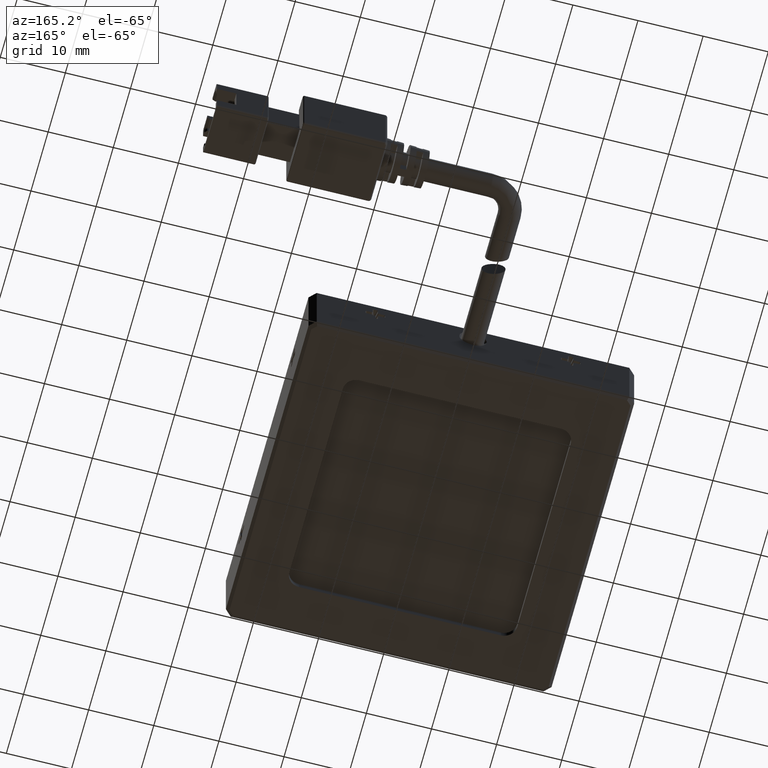
[diagram: clean part render]
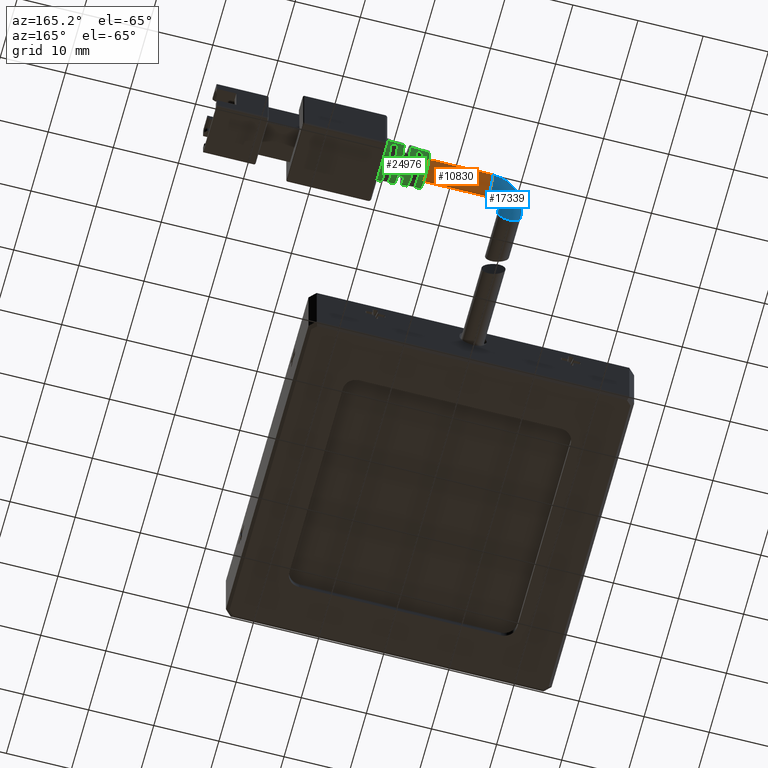
[diagram: same view with three faces highlighted in distinct colors, each labeled with its STEP entity id]
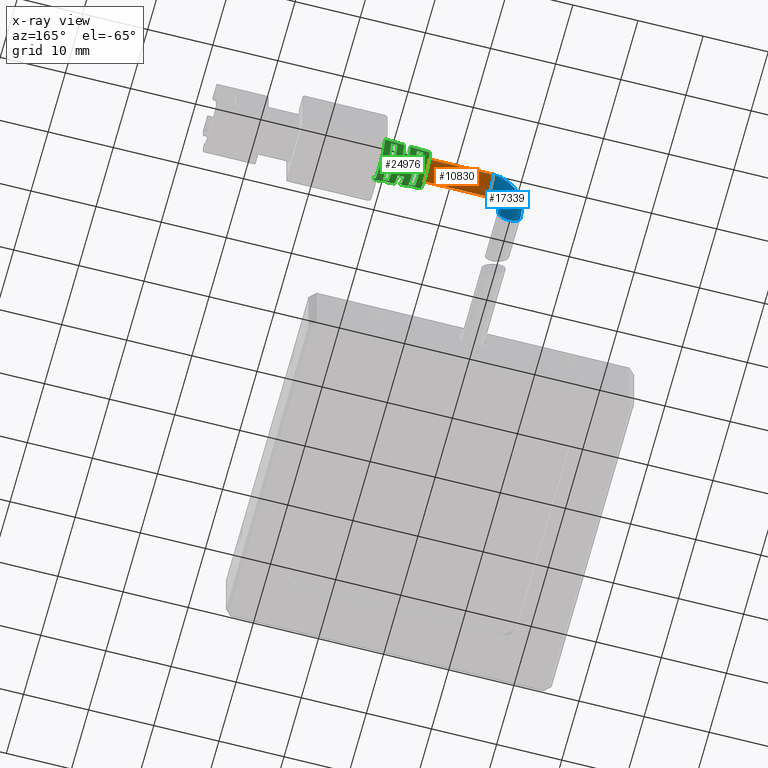
[diagram: x-ray of the same camera — body ghosted, the three highlighted faces saturated]
A machine part, auxiliary view with three faces highlighted in distinct colors.
The next image is the same camera in x-ray (body ghosted, the three faces saturated) — at least one of them is partly hidden behind the body in this view.
Their STEP definitions:

[orange] entity #10830 — the highlighted cylindrical surface (edge-blend (fillet) strip) has radius 1.75 mm, axis along (1, 0, 0).
#181 = CIRCLE ( 'NONE', #37378, 1.750000000000001600 ) ;
#325 = CARTESIAN_POINT ( 'NONE',  ( 33.26702531645572200, 65.96113924050634100, -1.250000000000000900 ) ) ;
#427 = DIRECTION ( 'NONE',  ( 1.000000000000000000, 0.0000000000000000000, 0.0000000000000000000 ) ) ;
#889 = VERTEX_POINT ( 'NONE', #25025 ) ;
#2106 = AXIS2_PLACEMENT_3D ( 'NONE', #24714, #5219, #27958 ) ;
#4204 = ORIENTED_EDGE ( 'NONE', *, *, #32628, .T. ) ;
#4391 = ORIENTED_EDGE ( 'NONE', *, *, #23008, .F. ) ;
#5080 = EDGE_CURVE ( 'NONE', #40951, #31940, #181, .T. ) ;
#5219 = DIRECTION ( 'NONE',  ( 1.000000000000000000, 0.0000000000000000000, 0.0000000000000000000 ) ) ;
#8376 = DIRECTION ( 'NONE',  ( 1.000000000000000000, 0.0000000000000000000, 0.0000000000000000000 ) ) ;
#9549 = FACE_OUTER_BOUND ( 'NONE', #10687, .T. ) ;
#10687 = EDGE_LOOP ( 'NONE', ( #4391, #21981, #4204, #40299 ) ) ;
#10830 = ADVANCED_FACE ( 'NONE', ( #9549 ), #39952, .T. ) ;
#12369 = CARTESIAN_POINT ( 'NONE',  ( 26.26702531645571900, 64.21113924050634100, -1.250000000000000700 ) ) ;
#15841 = CARTESIAN_POINT ( 'NONE',  ( 33.26702531645572200, 64.21113924050634100, -1.250000000000000700 ) ) ;
#17035 = LINE ( 'NONE', #21290, #22623 ) ;
#19120 = DIRECTION ( 'NONE',  ( 0.0000000000000000000, 1.000000000000000000, -1.239088197126289600E-016 ) ) ;
#21290 = CARTESIAN_POINT ( 'NONE',  ( 26.26702531645571900, 62.46113924050633400, -1.250000000000000200 ) ) ;
#21499 = EDGE_CURVE ( 'NONE', #889, #24837, #41717, .T. ) ;
#21981 = ORIENTED_EDGE ( 'NONE', *, *, #21499, .T. ) ;
#22623 = VECTOR ( 'NONE', #8376, 1000.000000000000000 ) ;
#23008 = EDGE_CURVE ( 'NONE', #889, #40951, #17035, .T. ) ;
#24714 = CARTESIAN_POINT ( 'NONE',  ( 23.26702531645571900, 64.21113924050634100, -1.250000000000000700 ) ) ;
#24837 = VERTEX_POINT ( 'NONE', #39963 ) ;
#25025 = CARTESIAN_POINT ( 'NONE',  ( 23.26702531645571900, 62.46113924050633400, -1.250000000000000900 ) ) ;
#25672 = AXIS2_PLACEMENT_3D ( 'NONE', #12369, #41629, #38452 ) ;
#26355 = CARTESIAN_POINT ( 'NONE',  ( 26.26702531645571900, 65.96113924050634100, -1.250000000000000900 ) ) ;
#27202 = CARTESIAN_POINT ( 'NONE',  ( 33.26702531645572200, 62.46113924050633400, -1.250000000000000200 ) ) ;
#27958 = DIRECTION ( 'NONE',  ( 0.0000000000000000000, 1.000000000000000000, -1.239088197126289600E-016 ) ) ;
#31940 = VERTEX_POINT ( 'NONE', #325 ) ;
#32628 = EDGE_CURVE ( 'NONE', #24837, #31940, #40547, .T. ) ;
#37378 = AXIS2_PLACEMENT_3D ( 'NONE', #15841, #38504, #19120 ) ;
#38452 = DIRECTION ( 'NONE',  ( 0.0000000000000000000, 1.000000000000000000, -1.239088197126289600E-016 ) ) ;
#38504 = DIRECTION ( 'NONE',  ( 1.000000000000000000, 0.0000000000000000000, 0.0000000000000000000 ) ) ;
#39495 = VECTOR ( 'NONE', #427, 1000.000000000000000 ) ;
#39952 = CYLINDRICAL_SURFACE ( 'NONE', #25672, 1.750000000000001600 ) ;
#39963 = CARTESIAN_POINT ( 'NONE',  ( 23.26702531645571900, 65.96113924050634100, -1.250000000000000700 ) ) ;
#40299 = ORIENTED_EDGE ( 'NONE', *, *, #5080, .F. ) ;
#40547 = LINE ( 'NONE', #26355, #39495 ) ;
#40951 = VERTEX_POINT ( 'NONE', #27202 ) ;
#41629 = DIRECTION ( 'NONE',  ( 1.000000000000000000, 0.0000000000000000000, 0.0000000000000000000 ) ) ;
#41717 = CIRCLE ( 'NONE', #2106, 1.750000000000001600 ) ;

[blue] entity #17339 — the highlighted face is a freeform B-spline surface patch.
#889 = VERTEX_POINT ( 'NONE', #25025 ) ;
#1731 = CARTESIAN_POINT ( 'NONE',  ( 23.26702531645571900, 65.96113924050632700, -4.750000000000000000 ) ) ;
#1814 = VERTEX_POINT ( 'NONE', #8256 ) ;
#2106 = AXIS2_PLACEMENT_3D ( 'NONE', #24714, #5219, #27958 ) ;
#3423 = DIRECTION ( 'NONE',  ( 0.0000000000000000000, -2.465190328815661900E-032, 1.000000000000000000 ) ) ;
#4868 = CARTESIAN_POINT ( 'NONE',  ( 23.26702531645571900, 65.96113924050634100, -1.250000000000000700 ) ) ;
#5002 = CARTESIAN_POINT ( 'NONE',  ( 17.51702531645571500, 63.57941125686103600, -4.750000000000000000 ) ) ;
#5141 = EDGE_CURVE ( 'NONE', #24837, #16649, #39794, .T. ) ;
#5219 = DIRECTION ( 'NONE',  ( 1.000000000000000000, 0.0000000000000000000, 0.0000000000000000000 ) ) ;
#5724 = DIRECTION ( 'NONE',  ( 1.836970198721029700E-016, 1.000000000000000000, 2.465190328815661900E-032 ) ) ;
#5955 = AXIS2_PLACEMENT_3D ( 'NONE', #25257, #5724, #28473 ) ;
#6761 = AXIS2_PLACEMENT_3D ( 'NONE', #12507, #35209, #15777 ) ;
#6949 = CIRCLE ( 'NONE', #5955, 1.749999999999998000 ) ;
#8256 = CARTESIAN_POINT ( 'NONE',  ( 21.01702531645572200, 60.21113924050633400, -1.250000000000000900 ) ) ;
#8304 = CARTESIAN_POINT ( 'NONE',  ( 23.26702531645571900, 62.46113924050633400, -4.750000000000000000 ) ) ;
#10210 = CARTESIAN_POINT ( 'NONE',  ( 19.26702531645571900, 60.21113924050633400, -3.000000000000000900 ) ) ;
#11396 = ORIENTED_EDGE ( 'NONE', *, *, #21499, .F. ) ;
#11559 = CARTESIAN_POINT ( 'NONE',  ( 21.01702531645571900, 61.52915872516687300, -4.750000000000000000 ) ) ;
#12507 = CARTESIAN_POINT ( 'NONE',  ( 19.26702531645571900, 60.21113924050633400, -1.250000000000000700 ) ) ;
#14824 = CARTESIAN_POINT ( 'NONE',  ( 23.26702531645571900, 62.46113924050633400, -1.250000000000000900 ) ) ;
#15113 = CIRCLE ( 'NONE', #16263, 2.249999999999995100 ) ;
#15228 = DIRECTION ( 'NONE',  ( 0.0000000000000000000, -2.465190328815661900E-032, 1.000000000000000000 ) ) ;
#15777 = DIRECTION ( 'NONE',  ( -1.000000000000000000, 0.0000000000000000000, 0.0000000000000000000 ) ) ;
#16263 = AXIS2_PLACEMENT_3D ( 'NONE', #34668, #15228, #37914 ) ;
#16649 = VERTEX_POINT ( 'NONE', #39687 ) ;
#17339 = ADVANCED_FACE ( 'NONE', ( #18745 ), #25784, .T. ) ;
#17969 = CARTESIAN_POINT ( 'NONE',  ( 19.89875330010101400, 65.96113924050634100, -1.250000000000000400 ) ) ;
#18112 = CARTESIAN_POINT ( 'NONE',  ( 21.01702531645571500, 61.52915872516687300, -1.250000000000000900 ) ) ;
#18745 = FACE_OUTER_BOUND ( 'NONE', #30409, .T. ) ;
#21220 = CARTESIAN_POINT ( 'NONE',  ( 17.51702531645571500, 60.21113924050633400, -1.250000000000000700 ) ) ;
#21499 = EDGE_CURVE ( 'NONE', #889, #24837, #41717, .T. ) ;
#22918 = CARTESIAN_POINT ( 'NONE',  ( 23.26702531645571900, 60.21113924050633400, -1.250000000000000700 ) ) ;
#24502 = CARTESIAN_POINT ( 'NONE',  ( 19.89875330010101400, 65.96113924050632700, -4.750000000000000000 ) ) ;
#24714 = CARTESIAN_POINT ( 'NONE',  ( 23.26702531645571900, 64.21113924050634100, -1.250000000000000700 ) ) ;
#24837 = VERTEX_POINT ( 'NONE', #39963 ) ;
#25025 = CARTESIAN_POINT ( 'NONE',  ( 23.26702531645571900, 62.46113924050633400, -1.250000000000000900 ) ) ;
#25257 = CARTESIAN_POINT ( 'NONE',  ( 19.26702531645571900, 60.21113924050633400, -1.250000000000000700 ) ) ;
#25784 =( BOUNDED_SURFACE ( )  B_SPLINE_SURFACE ( 3, 3, ( 
 ( #4868, #17969, #40645, #21220 ),
 ( #1731, #24502, #5002, #27746 ),
 ( #8304, #30985, #11559, #34286 ),
 ( #14824, #37517, #18112, #40791 ) ),
 .UNSPECIFIED., .F., .F., .F. ) 
 B_SPLINE_SURFACE_WITH_KNOTS ( ( 4, 4 ),
 ( 4, 4 ),
 ( 0.0000000000000000000, 1.000000000000000000 ),
 ( 0.0000000000000000000, 1.000000000000000000 ),
 .UNSPECIFIED. ) 
 GEOMETRIC_REPRESENTATION_ITEM ( )  RATIONAL_B_SPLINE_SURFACE ( (
 ( 1.000000000000000000, 0.8047378541243649400, 0.8047378541243649400, 1.000000000000000000),
 ( 0.3333333333333333700, 0.2682459513747883500, 0.2682459513747883500, 0.3333333333333333700),
 ( 0.3333333333333333700, 0.2682459513747883500, 0.2682459513747883500, 0.3333333333333333700),
 ( 1.000000000000000000, 0.8047378541243649400, 0.8047378541243649400, 1.000000000000000000) ) ) 
 REPRESENTATION_ITEM ( '' )  SURFACE ( )  );
#26219 = DIRECTION ( 'NONE',  ( 0.0000000000000000000, -1.000000000000000000, 0.0000000000000000000 ) ) ;
#27193 = ORIENTED_EDGE ( 'NONE', *, *, #32967, .T. ) ;
#27746 = CARTESIAN_POINT ( 'NONE',  ( 17.51702531645571500, 60.21113924050633400, -4.750000000000000000 ) ) ;
#27958 = DIRECTION ( 'NONE',  ( 0.0000000000000000000, 1.000000000000000000, -1.239088197126289600E-016 ) ) ;
#28281 = VERTEX_POINT ( 'NONE', #10210 ) ;
#28473 = DIRECTION ( 'NONE',  ( -1.000000000000000000, 0.0000000000000000000, 0.0000000000000000000 ) ) ;
#29077 = ORIENTED_EDGE ( 'NONE', *, *, #5141, .F. ) ;
#29657 = EDGE_CURVE ( 'NONE', #1814, #28281, #34745, .T. ) ;
#30409 = EDGE_LOOP ( 'NONE', ( #11396, #27193, #34116, #30810, #29077 ) ) ;
#30810 = ORIENTED_EDGE ( 'NONE', *, *, #39072, .T. ) ;
#30985 = CARTESIAN_POINT ( 'NONE',  ( 21.94900583179518000, 62.46113924050633400, -4.750000000000000000 ) ) ;
#32212 = AXIS2_PLACEMENT_3D ( 'NONE', #22918, #3423, #26219 ) ;
#32967 = EDGE_CURVE ( 'NONE', #889, #1814, #15113, .T. ) ;
#34116 = ORIENTED_EDGE ( 'NONE', *, *, #29657, .T. ) ;
#34286 = CARTESIAN_POINT ( 'NONE',  ( 21.01702531645571500, 60.21113924050633400, -4.750000000000000000 ) ) ;
#34668 = CARTESIAN_POINT ( 'NONE',  ( 23.26702531645571900, 60.21113924050633400, -1.250000000000000900 ) ) ;
#34745 = CIRCLE ( 'NONE', #6761, 1.749999999999998000 ) ;
#35209 = DIRECTION ( 'NONE',  ( 1.836970198721029700E-016, 1.000000000000000000, 2.465190328815661900E-032 ) ) ;
#37517 = CARTESIAN_POINT ( 'NONE',  ( 21.94900583179518300, 62.46113924050633400, -1.250000000000000900 ) ) ;
#37914 = DIRECTION ( 'NONE',  ( 0.0000000000000000000, -1.000000000000000000, 0.0000000000000000000 ) ) ;
#39072 = EDGE_CURVE ( 'NONE', #28281, #16649, #6949, .T. ) ;
#39687 = CARTESIAN_POINT ( 'NONE',  ( 17.51702531645572200, 60.21113924050633400, -1.250000000000000700 ) ) ;
#39794 = CIRCLE ( 'NONE', #32212, 5.749999999999998200 ) ;
#39963 = CARTESIAN_POINT ( 'NONE',  ( 23.26702531645571900, 65.96113924050634100, -1.250000000000000700 ) ) ;
#40645 = CARTESIAN_POINT ( 'NONE',  ( 17.51702531645571500, 63.57941125686104300, -1.250000000000000400 ) ) ;
#40791 = CARTESIAN_POINT ( 'NONE',  ( 21.01702531645571900, 60.21113924050633400, -1.250000000000000900 ) ) ;
#41717 = CIRCLE ( 'NONE', #2106, 1.750000000000001600 ) ;

[green] entity #24976 — the highlighted conical surface has half-angle 3 deg.
#454 = CARTESIAN_POINT ( 'NONE',  ( 40.26702531645572200, 67.46113924050536100, -1.250000000000000900 ) ) ;
#505 = EDGE_CURVE ( 'NONE', #19131, #8930, #40720, .T. ) ;
#1326 = CARTESIAN_POINT ( 'NONE',  ( 35.26702531645798900, 67.13823875308443700, -1.850000000000001000 ) ) ;
#1714 = CONICAL_SURFACE ( 'NONE', #4795, 3.249999999987096500, 0.05235987755968116900 ) ;
#2111 = EDGE_LOOP ( 'NONE', ( #17372, #13996, #12355, #10895, #38294, #9919, #17284, #22280, #18622, #18367, #14689, #23633 ) ) ;
#2227 = AXIS2_PLACEMENT_3D ( 'NONE', #28655, #9248, #31915 ) ;
#2290 = CARTESIAN_POINT ( 'NONE',  ( 38.60035835680046300, 67.31635901727143800, -1.850000000000001000 ) ) ;
#2390 = CARTESIAN_POINT ( 'NONE',  ( 36.93369166311234900, 64.81113924050633600, -4.266210776928613100 ) ) ;
#3054 = VERTEX_POINT ( 'NONE', #11598 ) ;
#3434 = VERTEX_POINT ( 'NONE', #39767 ) ;
#3756 = ORIENTED_EDGE ( 'NONE', *, *, #39703, .T. ) ;
#3761 = DIRECTION ( 'NONE',  ( -1.000000000000000000, -0.0000000000000000000, -0.0000000000000000000 ) ) ;
#4076 = EDGE_CURVE ( 'NONE', #20303, #40109, #23231, .T. ) ;
#4112 = ORIENTED_EDGE ( 'NONE', *, *, #17422, .T. ) ;
#4780 = CARTESIAN_POINT ( 'NONE',  ( 35.26702531645936700, 61.28403972792816700, -1.850000000000000500 ) ) ;
#4795 = AXIS2_PLACEMENT_3D ( 'NONE', #40828, #18145, #34457 ) ;
#4821 = CIRCLE ( 'NONE', #40738, 3.040368882866448400 ) ;
#5244 = CARTESIAN_POINT ( 'NONE',  ( 36.26702531643662300, 64.21113924050634100, -1.250000000000000700 ) ) ;
#5343 = CIRCLE ( 'NONE', #10103, 3.092776662151075500 ) ;
#5677 = EDGE_CURVE ( 'NONE', #38143, #21783, #14556, .T. ) ;
#5774 = CIRCLE ( 'NONE', #2227, 2.883145545018506200 ) ;
#6171 = LINE ( 'NONE', #23978, #22484 ) ;
#6249 = CARTESIAN_POINT ( 'NONE',  ( 39.26702531647936900, 64.21113924050634100, -1.250000000000000700 ) ) ;
#6792 = B_SPLINE_CURVE_WITH_KNOTS ( 'NONE', 3,
 ( #20998, #40270, #24269, #4780 ),
 .UNSPECIFIED., .F., .F.,
 ( 4, 4 ),
 ( 2.821323884305459600E-015, 0.001001431039903070100 ),
 .UNSPECIFIED. ) ;
#6838 = VECTOR ( 'NONE', #19892, 1000.000000000000200 ) ;
#7065 = EDGE_CURVE ( 'NONE', #40187, #20303, #27633, .T. ) ;
#7798 = CIRCLE ( 'NONE', #23634, 3.145184441432733000 ) ;
#7897 = CARTESIAN_POINT ( 'NONE',  ( 34.93369162600836100, 67.12040624538471400, -1.850000000000001000 ) ) ;
#8494 = EDGE_CURVE ( 'NONE', #13586, #3054, #4821, .T. ) ;
#8536 = DIRECTION ( 'NONE',  ( 0.0000000000000000000, 1.000000000000000000, -9.984861047838719200E-016 ) ) ;
#8904 = VERTEX_POINT ( 'NONE', #12593 ) ;
#8930 = VERTEX_POINT ( 'NONE', #28904 ) ;
#9173 = EDGE_CURVE ( 'NONE', #10125, #40187, #7798, .T. ) ;
#9248 = DIRECTION ( 'NONE',  ( 1.000000000000000000, 0.0000000000000000000, 0.0000000000000000000 ) ) ;
#9579 = DIRECTION ( 'NONE',  ( 0.0000000000000000000, 1.000000000000000000, -6.781366088276698700E-017 ) ) ;
#9726 = VERTEX_POINT ( 'NONE', #37415 ) ;
#9919 = ORIENTED_EDGE ( 'NONE', *, *, #22819, .T. ) ;
#10103 = AXIS2_PLACEMENT_3D ( 'NONE', #35745, #16344, #39007 ) ;
#10125 = VERTEX_POINT ( 'NONE', #39776 ) ;
#10247 = CARTESIAN_POINT ( 'NONE',  ( 40.26702531622834900, 67.46113924049343800, -1.250000000000000900 ) ) ;
#10390 = VERTEX_POINT ( 'NONE', #37936 ) ;
#10895 = ORIENTED_EDGE ( 'NONE', *, *, #8494, .T. ) ;
#11180 = CARTESIAN_POINT ( 'NONE',  ( 34.26702531647827500, 67.08472120729021500, -1.850000000000001200 ) ) ;
#11289 = AXIS2_PLACEMENT_3D ( 'NONE', #32954, #13513, #36186 ) ;
#11598 = CARTESIAN_POINT ( 'NONE',  ( 36.26702531644617300, 64.81113924050633600, -4.230577619171423700 ) ) ;
#12004 = CARTESIAN_POINT ( 'NONE',  ( 36.60035832392478000, 63.61113924050633300, -4.248397300001395900 ) ) ;
#12355 = ORIENTED_EDGE ( 'NONE', *, *, #21201, .T. ) ;
#12406 = CIRCLE ( 'NONE', #39705, 3.040368882866448400 ) ;
#12537 = DIRECTION ( 'NONE',  ( 1.000000000000000000, 0.0000000000000000000, 0.0000000000000000000 ) ) ;
#12593 = CARTESIAN_POINT ( 'NONE',  ( 37.26702531646982000, 67.30391590265740800, -1.250000000000000900 ) ) ;
#13020 = CARTESIAN_POINT ( 'NONE',  ( 34.26702531648391700, 64.21113924050634100, -1.250000000000000700 ) ) ;
#13513 = DIRECTION ( 'NONE',  ( -1.000000000000000000, -0.0000000000000000000, -0.0000000000000000000 ) ) ;
#13586 = VERTEX_POINT ( 'NONE', #35067 ) ;
#13968 = DIRECTION ( 'NONE',  ( -1.000000000000000000, -0.0000000000000000000, -0.0000000000000000000 ) ) ;
#13996 = ORIENTED_EDGE ( 'NONE', *, *, #14684, .T. ) ;
#14418 = EDGE_CURVE ( 'NONE', #23127, #8930, #33812, .T. ) ;
#14447 = FACE_BOUND ( 'NONE', #40063, .T. ) ;
#14556 = B_SPLINE_CURVE_WITH_KNOTS ( 'NONE', 3,
 ( #41242, #28170, #12004, #21806 ),
 .UNSPECIFIED., .F., .F.,
 ( 4, 4 ),
 ( 1.403640006643218800E-015, 0.001001426938980516500 ),
 .UNSPECIFIED. ) ;
#14614 = EDGE_CURVE ( 'NONE', #3054, #14752, #20094, .T. ) ;
#14684 = EDGE_CURVE ( 'NONE', #23570, #29925, #5774, .T. ) ;
#14689 = ORIENTED_EDGE ( 'NONE', *, *, #5677, .T. ) ;
#14752 = VERTEX_POINT ( 'NONE', #29211 ) ;
#14815 = CARTESIAN_POINT ( 'NONE',  ( 38.93369169520680400, 61.08812897988507700, -1.850000000000000500 ) ) ;
#15175 = CARTESIAN_POINT ( 'NONE',  ( 40.26702531622834900, 60.96113924051923800, -1.250000000000000000 ) ) ;
#15259 = CARTESIAN_POINT ( 'NONE',  ( 39.26702531646754600, 67.35193468274516700, -1.850000000000001200 ) ) ;
#15476 = FACE_BOUND ( 'NONE', #31888, .T. ) ;
#16293 = DIRECTION ( 'NONE',  ( 0.0000000000000000000, 1.000000000000000000, -9.602706328393786200E-016 ) ) ;
#16344 = DIRECTION ( 'NONE',  ( 1.000000000000000000, 0.0000000000000000000, 0.0000000000000000000 ) ) ;
#16764 = ORIENTED_EDGE ( 'NONE', *, *, #9173, .T. ) ;
#17284 = ORIENTED_EDGE ( 'NONE', *, *, #18756, .T. ) ;
#17372 = ORIENTED_EDGE ( 'NONE', *, *, #35108, .F. ) ;
#17422 = EDGE_CURVE ( 'NONE', #40109, #10125, #41194, .T. ) ;
#17891 = VECTOR ( 'NONE', #29660, 1000.000000000000200 ) ;
#17897 = ORIENTED_EDGE ( 'NONE', *, *, #24916, .T. ) ;
#18104 = CARTESIAN_POINT ( 'NONE',  ( 39.26702531647463000, 61.07034379826713200, -1.850000000000000500 ) ) ;
#18145 = DIRECTION ( 'NONE',  ( 1.000000000000000000, 0.0000000000000000000, 0.0000000000000000000 ) ) ;
#18300 = EDGE_CURVE ( 'NONE', #21783, #10390, #12406, .T. ) ;
#18301 = CARTESIAN_POINT ( 'NONE',  ( 39.26702531647463000, 61.07034379826713200, -1.850000000000000500 ) ) ;
#18367 = ORIENTED_EDGE ( 'NONE', *, *, #22780, .T. ) ;
#18397 = CARTESIAN_POINT ( 'NONE',  ( 38.93369169520680400, 67.33414950112761200, -1.850000000000001200 ) ) ;
#18622 = ORIENTED_EDGE ( 'NONE', *, *, #14418, .F. ) ;
#18756 = EDGE_CURVE ( 'NONE', #8904, #19131, #6171, .T. ) ;
#19084 = CARTESIAN_POINT ( 'NONE',  ( 37.26702531646982000, 64.21113924050634100, -1.250000000000000700 ) ) ;
#19131 = VERTEX_POINT ( 'NONE', #454 ) ;
#19844 = CARTESIAN_POINT ( 'NONE',  ( 36.26702531644042400, 63.61113924050633300, -4.230577619171116400 ) ) ;
#19892 = DIRECTION ( 'NONE',  ( 0.9986295347545816000, -0.05233595624279531500, 1.094872672590911800E-017 ) ) ;
#20049 = ORIENTED_EDGE ( 'NONE', *, *, #4076, .T. ) ;
#20094 = B_SPLINE_CURVE_WITH_KNOTS ( 'NONE', 3,
 ( #25022, #41324, #2390, #25168 ),
 .UNSPECIFIED., .F., .F.,
 ( 4, 4 ),
 ( 1.966509533942457600E-015, 0.001001426938979557700 ),
 .UNSPECIFIED. ) ;
#20303 = VERTEX_POINT ( 'NONE', #18301 ) ;
#20998 = CARTESIAN_POINT ( 'NONE',  ( 34.26702531646981200, 61.33755727372292200, -1.850000000000000800 ) ) ;
#21201 = EDGE_CURVE ( 'NONE', #29925, #13586, #35141, .T. ) ;
#21301 = AXIS2_PLACEMENT_3D ( 'NONE', #6249, #28981, #9579 ) ;
#21426 = AXIS2_PLACEMENT_3D ( 'NONE', #13020, #35698, #16293 ) ;
#21524 = ORIENTED_EDGE ( 'NONE', *, *, #33430, .T. ) ;
#21666 = CARTESIAN_POINT ( 'NONE',  ( 33.26702531645072000, 61.32799369548783400, -1.250000000000000000 ) ) ;
#21783 = VERTEX_POINT ( 'NONE', #19844 ) ;
#21806 = CARTESIAN_POINT ( 'NONE',  ( 36.26702531644042400, 63.61113924050633300, -4.230577619171116400 ) ) ;
#22280 = ORIENTED_EDGE ( 'NONE', *, *, #505, .T. ) ;
#22325 = DIRECTION ( 'NONE',  ( 0.0000000000000000000, 1.000000000000000000, -7.011189561495362000E-017 ) ) ;
#22484 = VECTOR ( 'NONE', #27242, 1000.000000000000200 ) ;
#22780 = EDGE_CURVE ( 'NONE', #23127, #38143, #29744, .T. ) ;
#22819 = EDGE_CURVE ( 'NONE', #14752, #8904, #5343, .T. ) ;
#23127 = VERTEX_POINT ( 'NONE', #25291 ) ;
#23231 = CIRCLE ( 'NONE', #21301, 3.197592220717360200 ) ;
#23254 = CARTESIAN_POINT ( 'NONE',  ( 36.26702531643662300, 64.21113924050634100, -1.250000000000000700 ) ) ;
#23570 = VERTEX_POINT ( 'NONE', #21666 ) ;
#23633 = ORIENTED_EDGE ( 'NONE', *, *, #18300, .T. ) ;
#23634 = AXIS2_PLACEMENT_3D ( 'NONE', #33414, #13968, #36640 ) ;
#23978 = CARTESIAN_POINT ( 'NONE',  ( 40.26702531622834900, 67.46113924049343800, -1.250000000000000900 ) ) ;
#24269 = CARTESIAN_POINT ( 'NONE',  ( 34.93369162600836100, 61.30187223562795400, -1.850000000000000500 ) ) ;
#24355 = VERTEX_POINT ( 'NONE', #27284 ) ;
#24650 = CIRCLE ( 'NONE', #28882, 2.987961103584790800 ) ;
#24916 = EDGE_CURVE ( 'NONE', #9726, #3434, #32090, .T. ) ;
#24976 = ADVANCED_FACE ( 'NONE', ( #39300, #15476, #14447 ), #1714, .T. ) ;
#25022 = CARTESIAN_POINT ( 'NONE',  ( 36.26702531644617300, 64.81113924050633600, -4.230577619171423700 ) ) ;
#25066 = CARTESIAN_POINT ( 'NONE',  ( 38.26702531644808400, 67.29856295140692200, -1.850000000000001000 ) ) ;
#25168 = CARTESIAN_POINT ( 'NONE',  ( 37.26702531646699200, 64.81113924050633600, -4.284018372051400900 ) ) ;
#25210 = ORIENTED_EDGE ( 'NONE', *, *, #7065, .T. ) ;
#25291 = CARTESIAN_POINT ( 'NONE',  ( 37.26702531646982000, 61.11836257835526000, -1.250000000000000000 ) ) ;
#26555 = DIRECTION ( 'NONE',  ( 0.0000000000000000000, 1.000000000000000000, -7.132043605599085300E-017 ) ) ;
#26584 = CARTESIAN_POINT ( 'NONE',  ( 40.26702531622834900, 60.96113924051923800, -1.250000000000000000 ) ) ;
#27242 = DIRECTION ( 'NONE',  ( 0.9986295347545816000, 0.05233595624279531500, -4.539420596603596700E-018 ) ) ;
#27284 = CARTESIAN_POINT ( 'NONE',  ( 35.26702531645936700, 61.28403972792816700, -1.850000000000000500 ) ) ;
#27633 = B_SPLINE_CURVE_WITH_KNOTS ( 'NONE', 3,
 ( #37508, #34277, #14815, #18104 ),
 .UNSPECIFIED., .F., .F.,
 ( 4, 4 ),
 ( 9.380091124788226300E-016, 0.001001423258045923400 ),
 .UNSPECIFIED. ) ;
#27983 = DIRECTION ( 'NONE',  ( -1.000000000000000000, -0.0000000000000000000, -0.0000000000000000000 ) ) ;
#28170 = CARTESIAN_POINT ( 'NONE',  ( 36.93369166311235600, 63.61113924050633300, -4.266210776928612200 ) ) ;
#28655 = CARTESIAN_POINT ( 'NONE',  ( 33.26702531645072000, 64.21113924050634100, -1.250000000000000700 ) ) ;
#28882 = AXIS2_PLACEMENT_3D ( 'NONE', #31953, #12537, #35241 ) ;
#28904 = CARTESIAN_POINT ( 'NONE',  ( 40.26702531645572200, 60.96113924050732900, -1.250000000000000000 ) ) ;
#28981 = DIRECTION ( 'NONE',  ( 1.000000000000000000, 0.0000000000000000000, 0.0000000000000000000 ) ) ;
#29211 = CARTESIAN_POINT ( 'NONE',  ( 37.26702531646699200, 64.81113924050633600, -4.284018372051400900 ) ) ;
#29275 = CIRCLE ( 'NONE', #21426, 2.935553324303133300 ) ;
#29660 = DIRECTION ( 'NONE',  ( 0.9986295347545816000, 0.05233595624279531500, -4.539420596603596700E-018 ) ) ;
#29744 = CIRCLE ( 'NONE', #30465, 3.092776662151075500 ) ;
#29925 = VERTEX_POINT ( 'NONE', #36702 ) ;
#30465 = AXIS2_PLACEMENT_3D ( 'NONE', #19084, #41770, #22325 ) ;
#30589 = CARTESIAN_POINT ( 'NONE',  ( 34.60035828589212100, 67.10256718773193500, -1.850000000000001200 ) ) ;
#31069 = VERTEX_POINT ( 'NONE', #33537 ) ;
#31888 = EDGE_LOOP ( 'NONE', ( #4112, #16764, #25210, #20049 ) ) ;
#31915 = DIRECTION ( 'NONE',  ( 0.0000000000000000000, 1.000000000000000000, -7.520967329303143100E-017 ) ) ;
#31953 = CARTESIAN_POINT ( 'NONE',  ( 35.26702531646027000, 64.21113924050634100, -1.250000000000000700 ) ) ;
#32090 = B_SPLINE_CURVE_WITH_KNOTS ( 'NONE', 3,
 ( #1326, #7897, #30589, #11180 ),
 .UNSPECIFIED., .F., .F.,
 ( 4, 4 ),
 ( 4.726604209672303400E-016, 0.001001431039896517200 ),
 .UNSPECIFIED. ) ;
#32176 = VECTOR ( 'NONE', #34765, 1000.000000000000200 ) ;
#32954 = CARTESIAN_POINT ( 'NONE',  ( 40.26702531645572200, 64.21113924050634100, -1.250000000000000700 ) ) ;
#33224 = CARTESIAN_POINT ( 'NONE',  ( 37.26702531646277100, 63.61113924050633300, -4.284018372051175300 ) ) ;
#33414 = CARTESIAN_POINT ( 'NONE',  ( 38.26702531644617300, 64.21113924050634100, -1.250000000000000700 ) ) ;
#33430 = EDGE_CURVE ( 'NONE', #31069, #24355, #6792, .T. ) ;
#33537 = CARTESIAN_POINT ( 'NONE',  ( 34.26702531646981200, 61.33755727372292200, -1.850000000000000800 ) ) ;
#33812 = LINE ( 'NONE', #26584, #6838 ) ;
#34277 = CARTESIAN_POINT ( 'NONE',  ( 38.60035835680047000, 61.10591946374124500, -1.850000000000000500 ) ) ;
#34457 = DIRECTION ( 'NONE',  ( 0.0000000000000000000, 1.000000000000000000, -6.672013369168055200E-017 ) ) ;
#34765 = DIRECTION ( 'NONE',  ( 0.9986295347545816000, -0.05233595624279531500, 1.094872672590911800E-017 ) ) ;
#35067 = CARTESIAN_POINT ( 'NONE',  ( 36.26702531643662300, 67.25150812337278700, -1.250000000000000900 ) ) ;
#35108 = EDGE_CURVE ( 'NONE', #23570, #10390, #40841, .T. ) ;
#35141 = LINE ( 'NONE', #10247, #17891 ) ;
#35241 = DIRECTION ( 'NONE',  ( 0.0000000000000000000, 1.000000000000000000, -7.257137123938718400E-017 ) ) ;
#35698 = DIRECTION ( 'NONE',  ( -1.000000000000000000, -0.0000000000000000000, -0.0000000000000000000 ) ) ;
#35745 = CARTESIAN_POINT ( 'NONE',  ( 37.26702531646982000, 64.21113924050634100, -1.250000000000000700 ) ) ;
#36186 = DIRECTION ( 'NONE',  ( 0.0000000000000000000, 1.000000000000000000, -6.672013369143582000E-017 ) ) ;
#36640 = DIRECTION ( 'NONE',  ( 0.0000000000000000000, 1.000000000000000000, 8.273235679558038800E-016 ) ) ;
#36702 = CARTESIAN_POINT ( 'NONE',  ( 33.26702531645072000, 67.09428478552484900, -1.250000000000000900 ) ) ;
#37410 = EDGE_CURVE ( 'NONE', #3434, #31069, #29275, .T. ) ;
#37415 = CARTESIAN_POINT ( 'NONE',  ( 35.26702531645798900, 67.13823875308443700, -1.850000000000001000 ) ) ;
#37508 = CARTESIAN_POINT ( 'NONE',  ( 38.26702531645094800, 61.12371552960559700, -1.850000000000000500 ) ) ;
#37879 = CARTESIAN_POINT ( 'NONE',  ( 39.26702531646754600, 67.35193468274516700, -1.850000000000001200 ) ) ;
#37936 = CARTESIAN_POINT ( 'NONE',  ( 36.26702531643662300, 61.17077035763989600, -1.250000000000000000 ) ) ;
#38015 = CARTESIAN_POINT ( 'NONE',  ( 38.26702531645094800, 61.12371552960559700, -1.850000000000000500 ) ) ;
#38143 = VERTEX_POINT ( 'NONE', #33224 ) ;
#38294 = ORIENTED_EDGE ( 'NONE', *, *, #14614, .T. ) ;
#39007 = DIRECTION ( 'NONE',  ( 0.0000000000000000000, 1.000000000000000000, -7.011189561495362000E-017 ) ) ;
#39300 = FACE_OUTER_BOUND ( 'NONE', #2111, .T. ) ;
#39703 = EDGE_CURVE ( 'NONE', #24355, #9726, #24650, .T. ) ;
#39705 = AXIS2_PLACEMENT_3D ( 'NONE', #5244, #27983, #8536 ) ;
#39767 = CARTESIAN_POINT ( 'NONE',  ( 34.26702531647827500, 67.08472120729021500, -1.850000000000001200 ) ) ;
#39776 = CARTESIAN_POINT ( 'NONE',  ( 38.26702531644808400, 67.29856295140692200, -1.850000000000001000 ) ) ;
#39896 = ORIENTED_EDGE ( 'NONE', *, *, #37410, .T. ) ;
#40063 = EDGE_LOOP ( 'NONE', ( #17897, #39896, #21524, #3756 ) ) ;
#40109 = VERTEX_POINT ( 'NONE', #37879 ) ;
#40187 = VERTEX_POINT ( 'NONE', #38015 ) ;
#40270 = CARTESIAN_POINT ( 'NONE',  ( 34.60035828589212100, 61.31971129328074700, -1.850000000000000800 ) ) ;
#40720 = CIRCLE ( 'NONE', #11289, 3.249999999999017700 ) ;
#40738 = AXIS2_PLACEMENT_3D ( 'NONE', #23254, #3761, #26555 ) ;
#40828 = CARTESIAN_POINT ( 'NONE',  ( 40.26702531622834900, 64.21113924050634100, -1.250000000000000700 ) ) ;
#40841 = LINE ( 'NONE', #15175, #32176 ) ;
#41194 = B_SPLINE_CURVE_WITH_KNOTS ( 'NONE', 3,
 ( #15259, #18397, #2290, #25066 ),
 .UNSPECIFIED., .F., .F.,
 ( 4, 4 ),
 ( 2.334811492945002300E-015, 0.001001423258043087500 ),
 .UNSPECIFIED. ) ;
#41242 = CARTESIAN_POINT ( 'NONE',  ( 37.26702531646277100, 63.61113924050633300, -4.284018372051175300 ) ) ;
#41324 = CARTESIAN_POINT ( 'NONE',  ( 36.60035832392476600, 64.81113924050633600, -4.248397300001395900 ) ) ;
#41770 = DIRECTION ( 'NONE',  ( 1.000000000000000000, 0.0000000000000000000, 0.0000000000000000000 ) ) ;